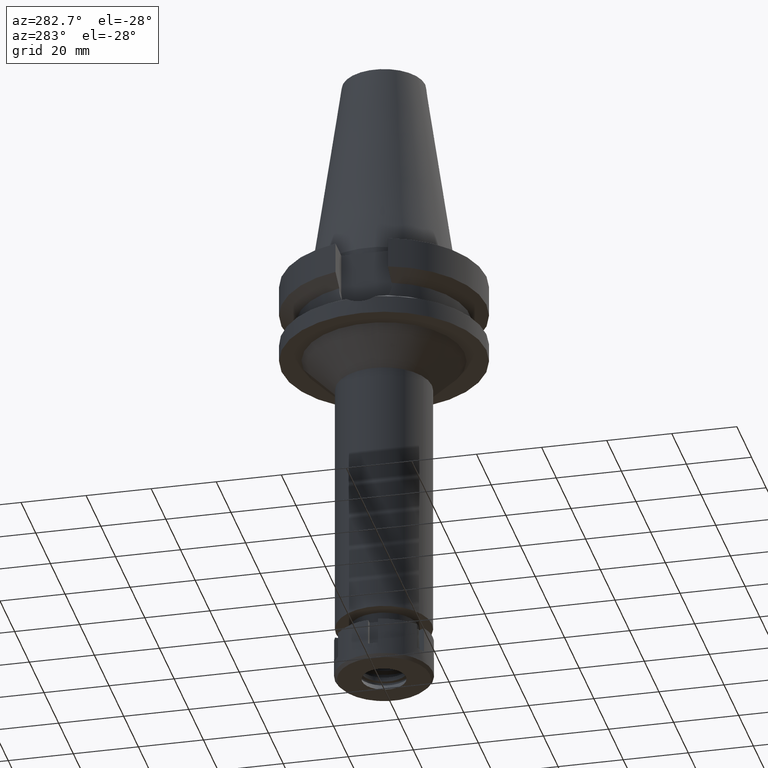
[diagram: clean part render]
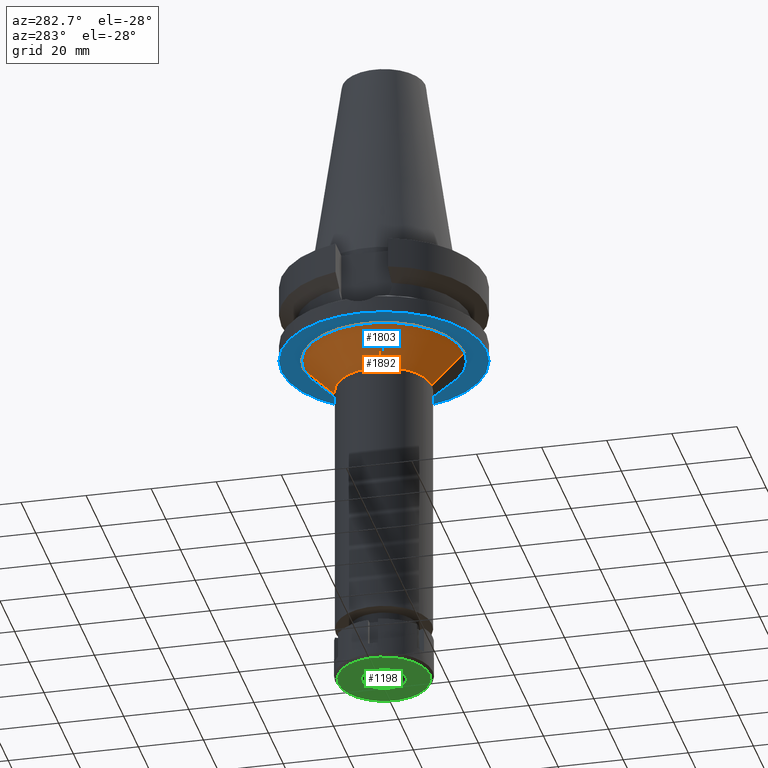
[diagram: same view with three faces highlighted in distinct colors, each labeled with its STEP entity id]
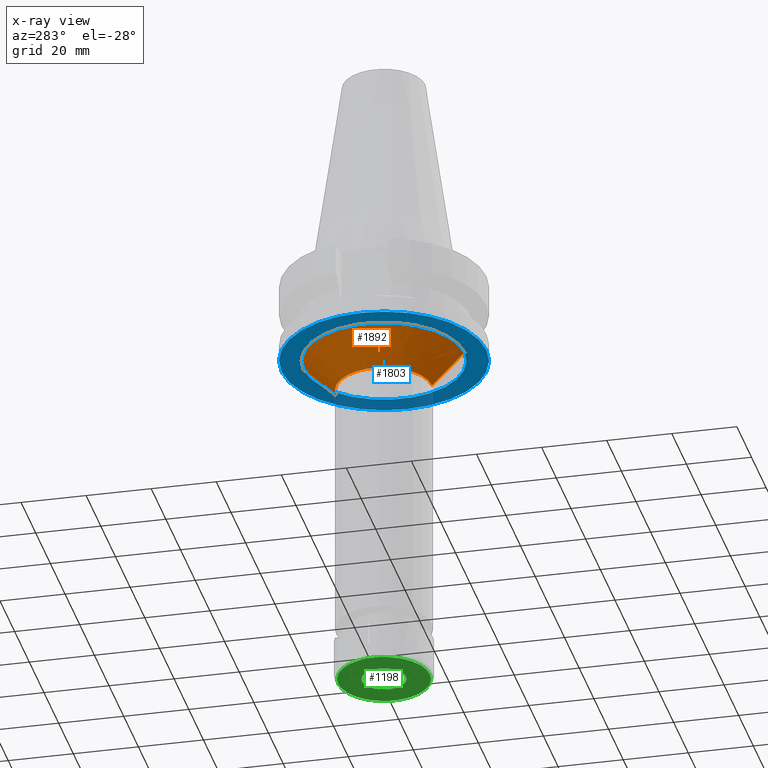
[diagram: x-ray of the same camera — body ghosted, the three highlighted faces saturated]
A machine part, auxiliary view with three faces highlighted in distinct colors.
The next image is the same camera in x-ray (body ghosted, the three faces saturated) — at least one of them is partly hidden behind the body in this view.
Their STEP definitions:

[orange] entity #1892 — the highlighted conical surface has half-angle 45 deg.
#86 = DIRECTION ( 'NONE',  ( 0.0000000000000000000, 1.000000000000000000, 0.0000000000000000000 ) ) ;
#89 = VERTEX_POINT ( 'NONE', #2011 ) ;
#97 = LINE ( 'NONE', #1223, #891 ) ;
#98 = FACE_OUTER_BOUND ( 'NONE', #1764, .T. ) ;
#117 = CARTESIAN_POINT ( 'NONE',  ( 0.0000000000000000000, 0.0000000000000000000, -32.00000000000000000 ) ) ;
#121 = DIRECTION ( 'NONE',  ( 0.0000000000000000000, 0.0000000000000000000, -1.000000000000000000 ) ) ;
#352 = EDGE_CURVE ( 'NONE', #1879, #2451, #2423, .T. ) ;
#430 = CARTESIAN_POINT ( 'NONE',  ( 0.0000000000000000000, -24.75000000000000000, -27.00000000000000000 ) ) ;
#436 = DIRECTION ( 'NONE',  ( 0.0000000000000000000, -1.000000000000000000, 0.0000000000000000000 ) ) ;
#533 = VERTEX_POINT ( 'NONE', #1870 ) ;
#667 = DIRECTION ( 'NONE',  ( 0.0000000000000000000, -1.000000000000000000, 0.0000000000000000000 ) ) ;
#690 = ORIENTED_EDGE ( 'NONE', *, *, #2649, .T. ) ;
#891 = VECTOR ( 'NONE', #1499, 1000.000000000000114 ) ;
#1223 = CARTESIAN_POINT ( 'NONE',  ( 0.0000000000000000000, 24.75000000000000000, -27.00000000000000000 ) ) ;
#1421 = EDGE_CURVE ( 'NONE', #2451, #89, #3121, .T. ) ;
#1435 = ORIENTED_EDGE ( 'NONE', *, *, #1483, .T. ) ;
#1483 = EDGE_CURVE ( 'NONE', #1879, #533, #2002, .T. ) ;
#1499 = DIRECTION ( 'NONE',  ( 0.0000000000000000000, -0.7071067811865474617, -0.7071067811865474617 ) ) ;
#1529 = AXIS2_PLACEMENT_3D ( 'NONE', #2360, #2696, #667 ) ;
#1764 = EDGE_LOOP ( 'NONE', ( #2598, #2555, #1435, #690 ) ) ;
#1789 = CARTESIAN_POINT ( 'NONE',  ( 0.0000000000000000000, -24.75000000000000000, -27.00000000000000000 ) ) ;
#1870 = CARTESIAN_POINT ( 'NONE',  ( 0.0000000000000000000, 24.75000000000000000, -27.00000000000000000 ) ) ;
#1879 = VERTEX_POINT ( 'NONE', #1789 ) ;
#1880 = AXIS2_PLACEMENT_3D ( 'NONE', #2110, #121, #436 ) ;
#1892 = ADVANCED_FACE ( 'NONE', ( #98 ), #2171, .T. ) ;
#2002 = CIRCLE ( 'NONE', #1529, 24.75000000000000000 ) ;
#2011 = CARTESIAN_POINT ( 'NONE',  ( 0.0000000000000000000, 14.75000000000000000, -37.00000000000000000 ) ) ;
#2110 = CARTESIAN_POINT ( 'NONE',  ( 0.0000000000000000000, 0.0000000000000000000, -37.00000000000000000 ) ) ;
#2171 = CONICAL_SURFACE ( 'NONE', #3123, 19.75000000000000000, 0.7853981633972997312 ) ;
#2360 = CARTESIAN_POINT ( 'NONE',  ( 0.0000000000000000000, 0.0000000000000000000, -27.00000000000000000 ) ) ;
#2423 = LINE ( 'NONE', #430, #2688 ) ;
#2451 = VERTEX_POINT ( 'NONE', #3250 ) ;
#2555 = ORIENTED_EDGE ( 'NONE', *, *, #352, .F. ) ;
#2598 = ORIENTED_EDGE ( 'NONE', *, *, #1421, .F. ) ;
#2606 = DIRECTION ( 'NONE',  ( 0.0000000000000000000, 0.0000000000000000000, 1.000000000000000000 ) ) ;
#2649 = EDGE_CURVE ( 'NONE', #533, #89, #97, .T. ) ;
#2688 = VECTOR ( 'NONE', #2708, 1000.000000000000114 ) ;
#2696 = DIRECTION ( 'NONE',  ( 0.0000000000000000000, 0.0000000000000000000, -1.000000000000000000 ) ) ;
#2708 = DIRECTION ( 'NONE',  ( 0.0000000000000000000, 0.7071067811865474617, -0.7071067811865474617 ) ) ;
#3121 = CIRCLE ( 'NONE', #1880, 14.75000000000000000 ) ;
#3123 = AXIS2_PLACEMENT_3D ( 'NONE', #117, #2606, #86 ) ;
#3250 = CARTESIAN_POINT ( 'NONE',  ( 0.0000000000000000000, -14.75000000000000000, -37.00000000000000000 ) ) ;

[blue] entity #1803 — the highlighted planar face has unit normal (0, 0, -1).
#110 = AXIS2_PLACEMENT_3D ( 'NONE', #2938, #1557, #416 ) ;
#364 = AXIS2_PLACEMENT_3D ( 'NONE', #640, #2882, #1766 ) ;
#416 = DIRECTION ( 'NONE',  ( 0.0000000000000000000, -1.000000000000000000, 0.0000000000000000000 ) ) ;
#503 = CARTESIAN_POINT ( 'NONE',  ( 0.0000000000000000000, 31.50000000000000000, -27.00000000000000000 ) ) ;
#512 = CARTESIAN_POINT ( 'NONE',  ( 0.0000000000000000000, 2.143989151267000102E-14, -27.00000000000000000 ) ) ;
#515 = EDGE_LOOP ( 'NONE', ( #595, #2818 ) ) ;
#533 = VERTEX_POINT ( 'NONE', #1870 ) ;
#595 = ORIENTED_EDGE ( 'NONE', *, *, #2622, .F. ) ;
#617 = EDGE_LOOP ( 'NONE', ( #1433, #2838 ) ) ;
#640 = CARTESIAN_POINT ( 'NONE',  ( 0.0000000000000000000, 2.143989151267000102E-14, -27.00000000000000000 ) ) ;
#667 = DIRECTION ( 'NONE',  ( 0.0000000000000000000, -1.000000000000000000, 0.0000000000000000000 ) ) ;
#691 = EDGE_CURVE ( 'NONE', #533, #1879, #3056, .T. ) ;
#729 = FACE_BOUND ( 'NONE', #617, .T. ) ;
#825 = DIRECTION ( 'NONE',  ( 0.0000000000000000000, -1.000000000000000000, 0.0000000000000000000 ) ) ;
#842 = DIRECTION ( 'NONE',  ( 0.0000000000000000000, 1.000000000000000000, 0.0000000000000000000 ) ) ;
#951 = FACE_OUTER_BOUND ( 'NONE', #515, .T. ) ;
#1235 = AXIS2_PLACEMENT_3D ( 'NONE', #512, #2787, #825 ) ;
#1433 = ORIENTED_EDGE ( 'NONE', *, *, #691, .F. ) ;
#1483 = EDGE_CURVE ( 'NONE', #1879, #533, #2002, .T. ) ;
#1529 = AXIS2_PLACEMENT_3D ( 'NONE', #2360, #2696, #667 ) ;
#1557 = DIRECTION ( 'NONE',  ( 0.0000000000000000000, 0.0000000000000000000, -1.000000000000000000 ) ) ;
#1593 = EDGE_CURVE ( 'NONE', #2036, #3042, #2233, .T. ) ;
#1599 = CIRCLE ( 'NONE', #364, 31.50000000000000000 ) ;
#1626 = CARTESIAN_POINT ( 'NONE',  ( 0.0000000000000000000, -31.50000000000000000, -27.00000000000000000 ) ) ;
#1706 = CARTESIAN_POINT ( 'NONE',  ( 0.0000000000000000000, 0.0000000000000000000, -27.00000000000000000 ) ) ;
#1766 = DIRECTION ( 'NONE',  ( 0.0000000000000000000, 1.000000000000000000, 0.0000000000000000000 ) ) ;
#1789 = CARTESIAN_POINT ( 'NONE',  ( 0.0000000000000000000, -24.75000000000000000, -27.00000000000000000 ) ) ;
#1803 = ADVANCED_FACE ( 'NONE', ( #951, #729 ), #1856, .T. ) ;
#1856 = PLANE ( 'NONE',  #110 ) ;
#1870 = CARTESIAN_POINT ( 'NONE',  ( 0.0000000000000000000, 24.75000000000000000, -27.00000000000000000 ) ) ;
#1879 = VERTEX_POINT ( 'NONE', #1789 ) ;
#2002 = CIRCLE ( 'NONE', #1529, 24.75000000000000000 ) ;
#2036 = VERTEX_POINT ( 'NONE', #1626 ) ;
#2233 = CIRCLE ( 'NONE', #1235, 31.50000000000000000 ) ;
#2360 = CARTESIAN_POINT ( 'NONE',  ( 0.0000000000000000000, 0.0000000000000000000, -27.00000000000000000 ) ) ;
#2622 = EDGE_CURVE ( 'NONE', #3042, #2036, #1599, .T. ) ;
#2696 = DIRECTION ( 'NONE',  ( 0.0000000000000000000, 0.0000000000000000000, -1.000000000000000000 ) ) ;
#2787 = DIRECTION ( 'NONE',  ( 0.0000000000000000000, 0.0000000000000000000, 1.000000000000000000 ) ) ;
#2818 = ORIENTED_EDGE ( 'NONE', *, *, #1593, .F. ) ;
#2821 = DIRECTION ( 'NONE',  ( 0.0000000000000000000, 0.0000000000000000000, -1.000000000000000000 ) ) ;
#2838 = ORIENTED_EDGE ( 'NONE', *, *, #1483, .F. ) ;
#2882 = DIRECTION ( 'NONE',  ( 0.0000000000000000000, 0.0000000000000000000, 1.000000000000000000 ) ) ;
#2938 = CARTESIAN_POINT ( 'NONE',  ( 0.0000000000000000000, 0.0000000000000000000, -27.00000000000000000 ) ) ;
#3042 = VERTEX_POINT ( 'NONE', #503 ) ;
#3056 = CIRCLE ( 'NONE', #3120, 24.75000000000000000 ) ;
#3120 = AXIS2_PLACEMENT_3D ( 'NONE', #1706, #2821, #842 ) ;

[green] entity #1198 — the highlighted planar face has unit normal (0, 0, -1).
#95 = EDGE_CURVE ( 'NONE', #2489, #1963, #3405, .T. ) ;
#160 = DIRECTION ( 'NONE',  ( 0.0000000000000000000, -1.000000000000000000, 0.0000000000000000000 ) ) ;
#323 = EDGE_CURVE ( 'NONE', #1731, #3007, #3174, .T. ) ;
#372 = CIRCLE ( 'NONE', #1361, 14.09999999999999964 ) ;
#569 = EDGE_LOOP ( 'NONE', ( #3644, #919 ) ) ;
#614 = DIRECTION ( 'NONE',  ( 0.0000000000000000000, 0.0000000000000000000, -1.000000000000000000 ) ) ;
#636 = DIRECTION ( 'NONE',  ( 0.0000000000000000000, 1.000000000000000000, 0.0000000000000000000 ) ) ;
#770 = AXIS2_PLACEMENT_3D ( 'NONE', #1395, #1220, #636 ) ;
#819 = CARTESIAN_POINT ( 'NONE',  ( 0.0000000000000000000, 14.09999999999999964, -12.50000000000000000 ) ) ;
#867 = FACE_BOUND ( 'NONE', #3466, .T. ) ;
#919 = ORIENTED_EDGE ( 'NONE', *, *, #95, .F. ) ;
#941 = DIRECTION ( 'NONE',  ( 0.0000000000000000000, 1.000000000000000000, 0.0000000000000000000 ) ) ;
#1134 = ORIENTED_EDGE ( 'NONE', *, *, #2752, .F. ) ;
#1155 = DIRECTION ( 'NONE',  ( 0.0000000000000000000, -1.000000000000000000, 0.0000000000000000000 ) ) ;
#1198 = ADVANCED_FACE ( 'NONE', ( #1697, #867 ), #2813, .T. ) ;
#1220 = DIRECTION ( 'NONE',  ( 0.0000000000000000000, 0.0000000000000000000, -1.000000000000000000 ) ) ;
#1233 = AXIS2_PLACEMENT_3D ( 'NONE', #2849, #614, #1155 ) ;
#1361 = AXIS2_PLACEMENT_3D ( 'NONE', #2702, #3464, #941 ) ;
#1395 = CARTESIAN_POINT ( 'NONE',  ( 0.0000000000000000000, 0.0000000000000000000, -12.50000000000000000 ) ) ;
#1423 = CIRCLE ( 'NONE', #770, 6.750000000000000000 ) ;
#1592 = DIRECTION ( 'NONE',  ( 0.0000000000000000000, 0.0000000000000000000, -1.000000000000000000 ) ) ;
#1697 = FACE_OUTER_BOUND ( 'NONE', #569, .T. ) ;
#1731 = VERTEX_POINT ( 'NONE', #2261 ) ;
#1963 = VERTEX_POINT ( 'NONE', #819 ) ;
#2219 = AXIS2_PLACEMENT_3D ( 'NONE', #3231, #1592, #160 ) ;
#2261 = CARTESIAN_POINT ( 'NONE',  ( 0.0000000000000000000, -6.750000000000000000, -12.50000000000000000 ) ) ;
#2489 = VERTEX_POINT ( 'NONE', #3040 ) ;
#2517 = AXIS2_PLACEMENT_3D ( 'NONE', #2886, #3138, #2846 ) ;
#2702 = CARTESIAN_POINT ( 'NONE',  ( 0.0000000000000000000, 0.0000000000000000000, -12.50000000000000000 ) ) ;
#2752 = EDGE_CURVE ( 'NONE', #3007, #1731, #1423, .T. ) ;
#2813 = PLANE ( 'NONE',  #1233 ) ;
#2846 = DIRECTION ( 'NONE',  ( 0.0000000000000000000, -1.000000000000000000, 0.0000000000000000000 ) ) ;
#2849 = CARTESIAN_POINT ( 'NONE',  ( 0.0000000000000000000, 0.0000000000000000000, -12.50000000000000000 ) ) ;
#2886 = CARTESIAN_POINT ( 'NONE',  ( 0.0000000000000000000, 0.0000000000000000000, -12.50000000000000000 ) ) ;
#3007 = VERTEX_POINT ( 'NONE', #3555 ) ;
#3040 = CARTESIAN_POINT ( 'NONE',  ( 0.0000000000000000000, -14.09999999999999964, -12.50000000000000000 ) ) ;
#3138 = DIRECTION ( 'NONE',  ( 0.0000000000000000000, 0.0000000000000000000, 1.000000000000000000 ) ) ;
#3174 = CIRCLE ( 'NONE', #2219, 6.750000000000000000 ) ;
#3231 = CARTESIAN_POINT ( 'NONE',  ( 0.0000000000000000000, 0.0000000000000000000, -12.50000000000000000 ) ) ;
#3405 = CIRCLE ( 'NONE', #2517, 14.09999999999999964 ) ;
#3464 = DIRECTION ( 'NONE',  ( 0.0000000000000000000, 0.0000000000000000000, 1.000000000000000000 ) ) ;
#3466 = EDGE_LOOP ( 'NONE', ( #1134, #3597 ) ) ;
#3521 = EDGE_CURVE ( 'NONE', #1963, #2489, #372, .T. ) ;
#3555 = CARTESIAN_POINT ( 'NONE',  ( 0.0000000000000000000, 6.750000000000000000, -12.50000000000000000 ) ) ;
#3597 = ORIENTED_EDGE ( 'NONE', *, *, #323, .F. ) ;
#3644 = ORIENTED_EDGE ( 'NONE', *, *, #3521, .F. ) ;